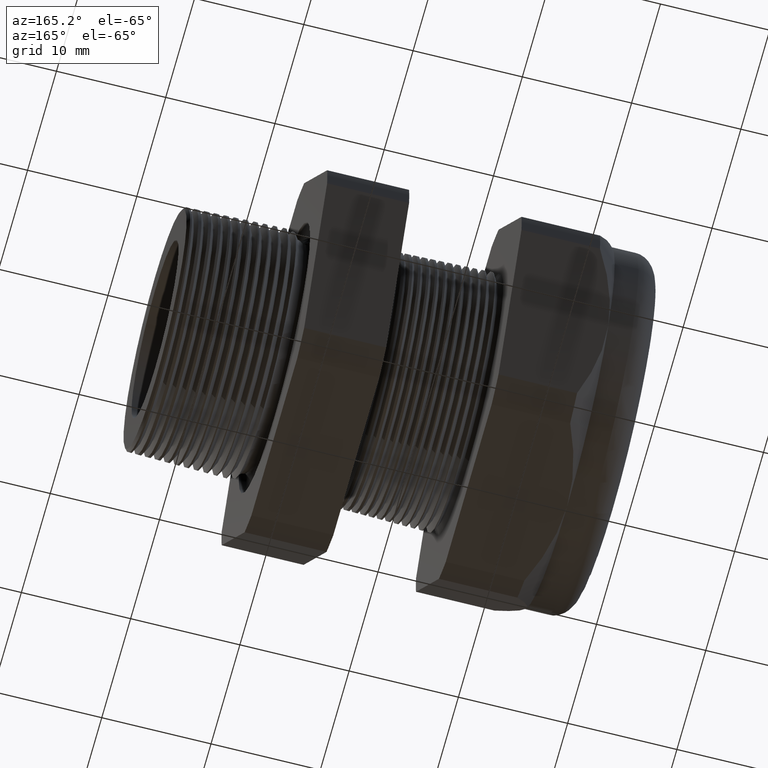
[diagram: clean part render]
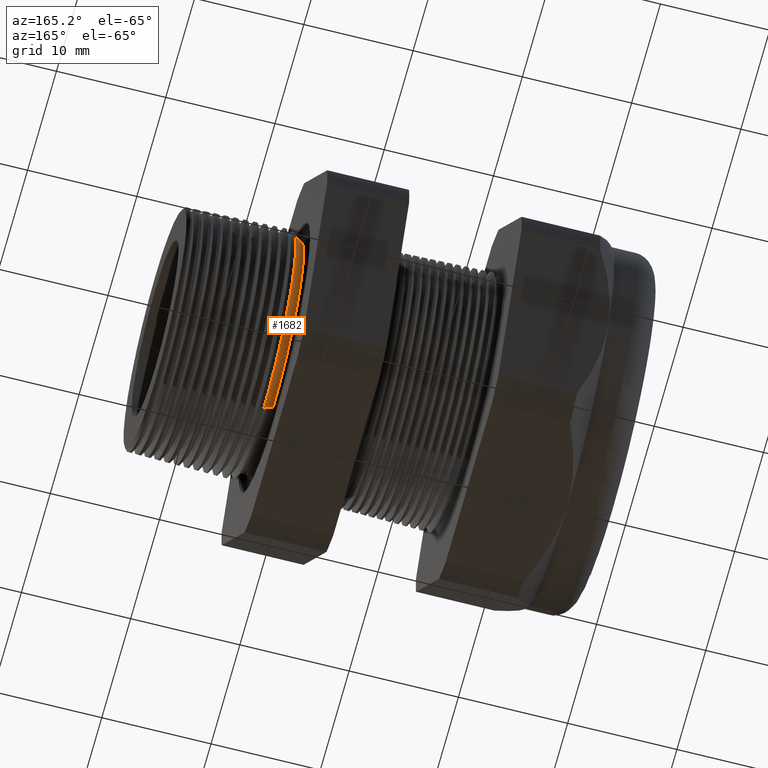
[diagram: same view with one face highlighted and labeled with its STEP entity id]
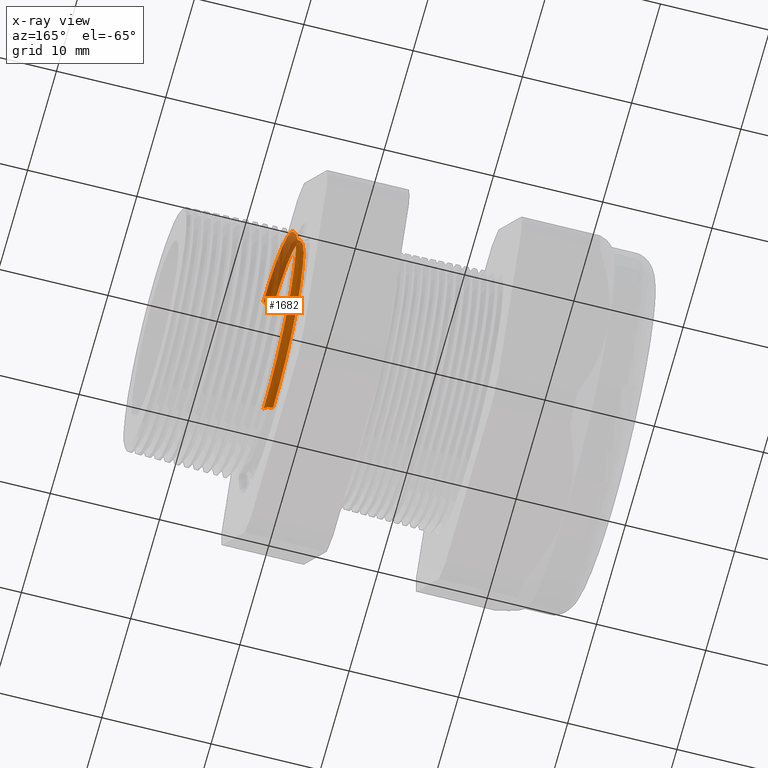
[diagram: x-ray of the same camera — body ghosted, the highlighted face saturated]
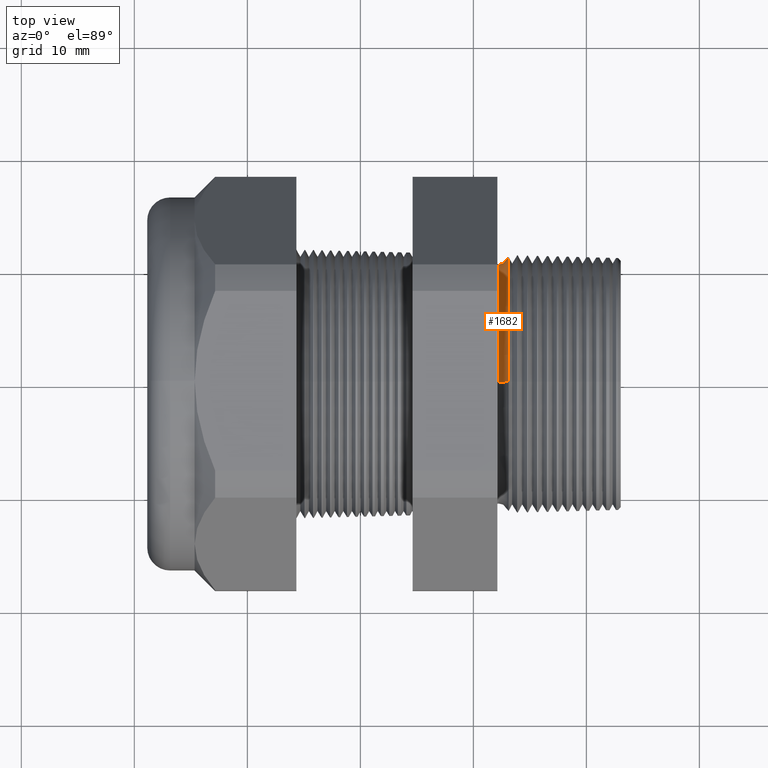
[diagram: same view with one face highlighted and labeled with its STEP entity id]
A machine part, auxiliary view. The second image highlights one B-rep face of the part: STEP entity #1682.
The next image is the same camera in x-ray: the body ghosted, the highlighted face saturated — about 32% of this face is hidden behind the body in this view.
A second angle (top view) of the same face is appended — the face is thin or edge-on in the first view.
In plain terms, the highlighted toroidal blend (fillet) surface has major radius 11.4722 mm and minor (blend) radius 0.889 mm.
Its self-contained STEP definition (entity closure, byte-faithful):
#1665 = VERTEX_POINT ( 'NONE', #4936 ) ;
#1666 = VERTEX_POINT ( 'NONE', #4998 ) ;
#1672 = ORIENTED_EDGE ( 'NONE', *, *, #1677, .T. ) ;
#1673 = EDGE_LOOP ( 'NONE', ( #1672, #1732, #1718, #1737 ) ) ;
#1677 = EDGE_CURVE ( 'NONE', #1665, #1666, #4980, .T. ) ;
#1682 = ADVANCED_FACE ( 'NONE', ( #4970 ), #5035, .F. ) ;
#1712 = EDGE_CURVE ( 'NONE', #1715, #1717, #5040, .T. ) ;
#1713 = EDGE_CURVE ( 'NONE', #1666, #1717, #5096, .T. ) ;
#1715 = VERTEX_POINT ( 'NONE', #5092 ) ;
#1717 = VERTEX_POINT ( 'NONE', #5091 ) ;
#1718 = ORIENTED_EDGE ( 'NONE', *, *, #1712, .F. ) ;
#1732 = ORIENTED_EDGE ( 'NONE', *, *, #1713, .T. ) ;
#1737 = ORIENTED_EDGE ( 'NONE', *, *, #1739, .F. ) ;
#1739 = EDGE_CURVE ( 'NONE', #1665, #1715, #5124, .T. ) ;
#4936 = CARTESIAN_POINT ( 'NONE',  ( -0.2708463023710467300, 5.437571985838959600E-017, -0.4440114480048295600 ) ) ;
#4970 = FACE_OUTER_BOUND ( 'NONE', #1673, .T. ) ;
#4976 = DIRECTION ( 'NONE',  ( 0.0000000000000000000, 0.0000000000000000000, -1.000000000000000000 ) ) ;
#4977 = DIRECTION ( 'NONE',  ( 0.0000000000000000000, -1.000000000000000000, 0.0000000000000000000 ) ) ;
#4978 = CARTESIAN_POINT ( 'NONE',  ( -0.3049999999999999400, 0.0000000000000000000, -0.4516616073672216100 ) ) ;
#4979 = AXIS2_PLACEMENT_3D ( 'NONE', #4978, #4977, #4976 ) ;
#4980 = CIRCLE ( 'NONE', #4979, 0.03499999999999996900 ) ;
#4998 = CARTESIAN_POINT ( 'NONE',  ( -0.3049999999999999400, 0.0000000000000000000, -0.4166616073672216300 ) ) ;
#5031 = DIRECTION ( 'NONE',  ( 0.0000000000000000000, 0.0000000000000000000, -1.000000000000000000 ) ) ;
#5032 = DIRECTION ( 'NONE',  ( 1.000000000000000000, 0.0000000000000000000, 0.0000000000000000000 ) ) ;
#5033 = CARTESIAN_POINT ( 'NONE',  ( -0.3049999999999999400, 0.0000000000000000000, 0.0000000000000000000 ) ) ;
#5034 = AXIS2_PLACEMENT_3D ( 'NONE', #5033, #5032, #5031 ) ;
#5035 = TOROIDAL_SURFACE ( 'NONE', #5034, 0.4516616073672216100, 0.03499999999999994800 ) ;
#5036 = DIRECTION ( 'NONE',  ( 0.0000000000000000000, 1.224646799147352700E-016, 1.000000000000000000 ) ) ;
#5037 = DIRECTION ( 'NONE',  ( 0.0000000000000000000, 1.000000000000000000, -1.224646799147353200E-016 ) ) ;
#5038 = CARTESIAN_POINT ( 'NONE',  ( -0.3049999999999999400, 5.531259417600165900E-017, 0.4516616073672216100 ) ) ;
#5039 = AXIS2_PLACEMENT_3D ( 'NONE', #5038, #5037, #5036 ) ;
#5040 = CIRCLE ( 'NONE', #5039, 0.03499999999999996900 ) ;
#5041 = CARTESIAN_POINT ( 'NONE',  ( -0.3049999999999999400, 0.0000000000000000000, 0.0000000000000000000 ) ) ;
#5091 = CARTESIAN_POINT ( 'NONE',  ( -0.3049999999999999400, 5.102633037898592000E-017, 0.4166616073672216300 ) ) ;
#5092 = CARTESIAN_POINT ( 'NONE',  ( -0.2708463023710467300, 0.0000000000000000000, 0.4440114480048295600 ) ) ;
#5093 = DIRECTION ( 'NONE',  ( 0.0000000000000000000, 0.0000000000000000000, -1.000000000000000000 ) ) ;
#5094 = DIRECTION ( 'NONE',  ( 1.000000000000000000, 0.0000000000000000000, 0.0000000000000000000 ) ) ;
#5095 = AXIS2_PLACEMENT_3D ( 'NONE', #5041, #5094, #5093 ) ;
#5096 = CIRCLE ( 'NONE', #5095, 0.4166616073672216300 ) ;
#5120 = DIRECTION ( 'NONE',  ( 0.0000000000000000000, 0.0000000000000000000, 1.000000000000000000 ) ) ;
#5121 = DIRECTION ( 'NONE',  ( 1.000000000000000000, 0.0000000000000000000, 0.0000000000000000000 ) ) ;
#5122 = CARTESIAN_POINT ( 'NONE',  ( -0.2708463023710467300, 0.0000000000000000000, 0.0000000000000000000 ) ) ;
#5123 = AXIS2_PLACEMENT_3D ( 'NONE', #5122, #5121, #5120 ) ;
#5124 = CIRCLE ( 'NONE', #5123, 0.4440114480048295600 ) ;